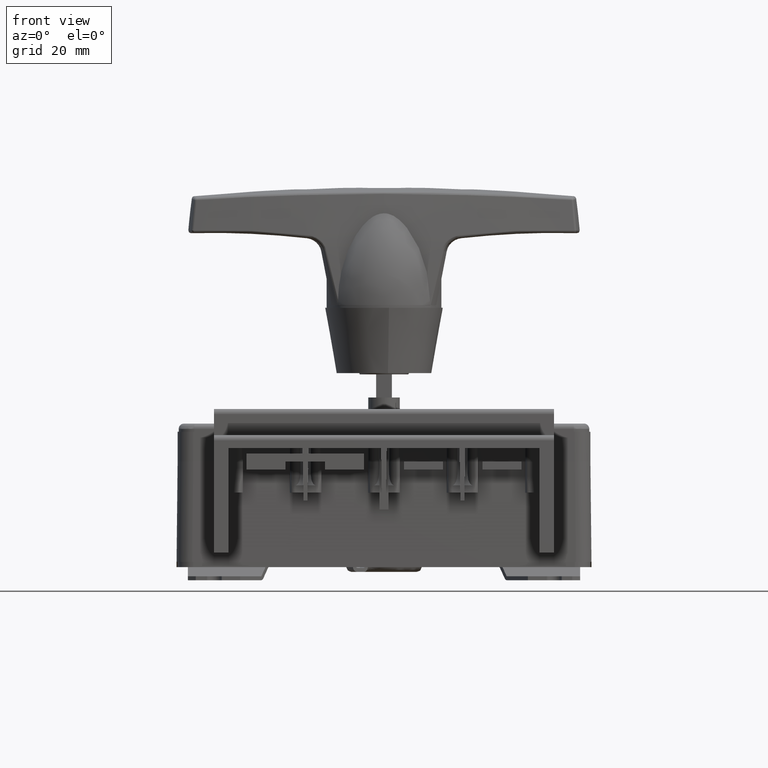
[diagram: clean part render]
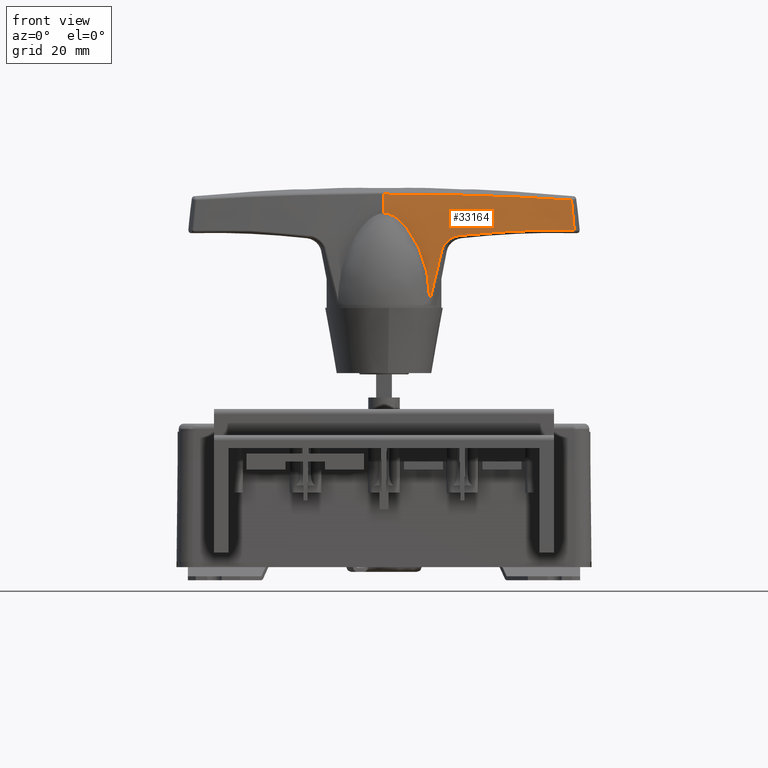
[diagram: same view with one face highlighted and labeled with its STEP entity id]
A machine part, front view. The second image highlights one B-rep face of the part: STEP entity #33164.
In plain terms, the highlighted face is a freeform B-spline surface patch.
Its self-contained STEP definition (entity closure, byte-faithful):
#196 = CARTESIAN_POINT ( 'NONE',  ( 14.41944393843570000, -13.33752662045300000, 79.27859620006819300 ) ) ;
#451 = CARTESIAN_POINT ( 'NONE',  ( 12.27575934263143000, -13.78966130670108100, 69.89632541492693500 ) ) ;
#1187 = CARTESIAN_POINT ( 'NONE',  ( 11.75489548934660500, -13.87228360459669800, 67.77185119048758100 ) ) ;
#1317 = B_SPLINE_CURVE_WITH_KNOTS ( 'NONE', 3,
 ( #12036, #35324, #32098, #42013 ),
 .UNSPECIFIED., .F., .F.,
 ( 4, 4 ),
 ( 0.0000000000000000000, 1.000000000000000000 ),
 .UNSPECIFIED. ) ;
#1847 = CARTESIAN_POINT ( 'NONE',  ( 4.510692440815994100, -12.47474075559832600, 82.98244076390612600 ) ) ;
#1979 = CARTESIAN_POINT ( 'NONE',  ( 7.275115921477890000, -14.09589949918153800, 58.50000000000000000 ) ) ;
#2138 = CARTESIAN_POINT ( 'NONE',  ( -4.240348282915114500, -11.01941652414501300, 92.85997470954609400 ) ) ;
#2352 = EDGE_LOOP ( 'NONE', ( #27936, #25308, #39068, #12340, #16681, #18527, #38831 ) ) ;
#2779 = CARTESIAN_POINT ( 'NONE',  ( 57.94501493321909900, -13.75833456142054200, 87.21105664100970500 ) ) ;
#2953 = CARTESIAN_POINT ( 'NONE',  ( 21.37823111764905100, -13.25110541548554000, 85.16724019757610600 ) ) ;
#3247 = CARTESIAN_POINT ( 'NONE',  ( 15.81444611341575200, -13.20960565004251900, 82.17402162657619200 ) ) ;
#3667 = CARTESIAN_POINT ( 'NONE',  ( 12.34752211688470100, -13.77754201632257700, 70.19346741877853900 ) ) ;
#3957 = CARTESIAN_POINT ( 'NONE',  ( 11.09995550108849100, -13.96263888091741700, 65.18101659154305600 ) ) ;
#4019 = VERTEX_POINT ( 'NONE', #36644 ) ;
#4407 = CARTESIAN_POINT ( 'NONE',  ( 11.12907893940481000, -13.95891341986140500, 65.29446524637300800 ) ) ;
#4503 = VERTEX_POINT ( 'NONE', #4716 ) ;
#4558 = CARTESIAN_POINT ( 'NONE',  ( 12.27062671178848800, -13.79052192036072800, 69.87510863833043100 ) ) ;
#4716 = CARTESIAN_POINT ( 'NONE',  ( 21.37823111764905100, -13.25110541548554000, 85.16724019757610600 ) ) ;
#4926 = CARTESIAN_POINT ( 'NONE',  ( 8.116167154348778100, -13.33568883840897500, 73.64139503623741200 ) ) ;
#5342 = CARTESIAN_POINT ( 'NONE',  ( 1.360735136817077300, -11.86605816185210600, 87.91417739141392900 ) ) ;
#5471 = CARTESIAN_POINT ( 'NONE',  ( 67.50818577971900000, -13.85481809153677800, 85.62030819358429300 ) ) ;
#5612 = CARTESIAN_POINT ( 'NONE',  ( 62.58064729434161000, -12.81392240493577900, 99.47927979780931200 ) ) ;
#5667 = CARTESIAN_POINT ( 'NONE',  ( 64.27970629598779300, -12.86532595852627900, 98.64435150843910100 ) ) ;
#5745 = CARTESIAN_POINT ( 'NONE',  ( -2.566485471225302000, -11.77242363676071200, 87.25670609724058100 ) ) ;
#6141 = CARTESIAN_POINT ( 'NONE',  ( 50.61630883178170100, -13.79565976512102000, 87.13348364996981800 ) ) ;
#6306 = CARTESIAN_POINT ( 'NONE',  ( 15.57026510336525000, -13.21985205270026000, 81.85429124515890500 ) ) ;
#6442 = CARTESIAN_POINT ( 'NONE',  ( 19.78661440675410100, -13.20323527565324000, 84.87678277494239900 ) ) ;
#6583 = CARTESIAN_POINT ( 'NONE',  ( 15.13635726089510000, -13.24507829642820100, 81.17777991913280300 ) ) ;
#6719 = CARTESIAN_POINT ( 'NONE',  ( 13.18758957326605400, -13.62153223176741300, 73.75233473310093800 ) ) ;
#7149 = CARTESIAN_POINT ( 'NONE',  ( 14.07669940523567400, -13.42610348467464800, 77.68884222011621400 ) ) ;
#7298 = CARTESIAN_POINT ( 'NONE',  ( 11.22853407124868100, -13.94601492402950200, 65.68295529015794900 ) ) ;
#7449 = CARTESIAN_POINT ( 'NONE',  ( 9.856994440711050100, -14.09784782576156000, 60.48502243093000200 ) ) ;
#8460 = CARTESIAN_POINT ( 'NONE',  ( 49.25234856689491600, -12.81608270550170800, 99.58068757589224200 ) ) ;
#8540 = CARTESIAN_POINT ( 'NONE',  ( 1.859725127441946400, -11.95677392737002100, 87.24294438170403500 ) ) ;
#8679 = CARTESIAN_POINT ( 'NONE',  ( -0.2604242407059280100, -11.58770487402654600, 89.82284458690048700 ) ) ;
#8811 = CARTESIAN_POINT ( 'NONE',  ( 5.250380265524934300, -12.63397714021392700, 81.48840182298528100 ) ) ;
#9218 = CARTESIAN_POINT ( 'NONE',  ( -2.444630412392020200, -10.33710155271790000, 101.5854696515928000 ) ) ;
#9603 = CARTESIAN_POINT ( 'NONE',  ( 35.97070078267099500, -13.64713298749870100, 86.47417694349179800 ) ) ;
#9924 = CARTESIAN_POINT ( 'NONE',  ( 14.62919921393164000, -13.29537075439160000, 80.06644105329719700 ) ) ;
#11734 = EDGE_CURVE ( 'NONE', #12365, #25529, #30854, .T. ) ;
#11916 = CARTESIAN_POINT ( 'NONE',  ( 34.21005872531782200, -12.45761027967377300, 100.2398324350729400 ) ) ;
#12009 = CARTESIAN_POINT ( 'NONE',  ( -7.493436711893019200, -10.69596421225256000, 93.61918897574979300 ) ) ;
#12036 = CARTESIAN_POINT ( 'NONE',  ( 64.27970629598779300, -12.86532595852627900, 98.64435150843910100 ) ) ;
#12061 = CARTESIAN_POINT ( 'NONE',  ( 52.26111344243822300, -12.84975817469451100, 99.41592596334112400 ) ) ;
#12134 = CARTESIAN_POINT ( 'NONE',  ( 62.40076749385930600, -14.93269383349410100, 58.50000000000000000 ) ) ;
#12247 = EDGE_CURVE ( 'NONE', #20208, #30630, #25022, .T. ) ;
#12340 = ORIENTED_EDGE ( 'NONE', *, *, #14725, .F. ) ;
#12365 = VERTEX_POINT ( 'NONE', #14682 ) ;
#12801 = CARTESIAN_POINT ( 'NONE',  ( 21.37823111764905100, -13.25110541548554000, 85.16724019757610600 ) ) ;
#13120 = CARTESIAN_POINT ( 'NONE',  ( 51.48841093987989800, 684.0404835327730100, 31.47090000250485500 ) ) ;
#13519 = CARTESIAN_POINT ( 'NONE',  ( 14.41944393843570000, -13.33752662045300000, 79.27859620006819300 ) ) ;
#13663 = CARTESIAN_POINT ( 'NONE',  ( 65.26875302407229600, -13.66734937875172000, 87.09663857756119400 ) ) ;
#14383 = CARTESIAN_POINT ( 'NONE',  ( -7.434655746359039700, -10.00359391840812000, 100.9755228237632000 ) ) ;
#14389 = CARTESIAN_POINT ( 'NONE',  ( 12.26842672481569000, -13.79089053843460300, 69.86601606205665900 ) ) ;
#14532 = CARTESIAN_POINT ( 'NONE',  ( 10.54437098464822500, -14.03341399710400800, 63.01856117539013300 ) ) ;
#14682 = CARTESIAN_POINT ( 'NONE',  ( -7.434655746359039700, -10.00359391840812000, 100.9755228237632000 ) ) ;
#14725 = EDGE_CURVE ( 'NONE', #41039, #4503, #15545, .T. ) ;
#14769 = CARTESIAN_POINT ( 'NONE',  ( -3.497340065578338200, -11.11235078432009400, 92.46292611463904600 ) ) ;
#14899 = CARTESIAN_POINT ( 'NONE',  ( -2.697764475848879700, -13.31872161127494000, 58.50000000000000000 ) ) ;
#15066 = CARTESIAN_POINT ( 'NONE',  ( -7.068448556615003900, -10.72910890980635500, 93.62352362557922400 ) ) ;
#15545 = B_SPLINE_CURVE_WITH_KNOTS ( 'NONE', 3,
 ( #19479, #22664, #2779, #6141, #29358, #29519, #9603, #19626, #32734, #12801 ),
 .UNSPECIFIED., .F., .F.,
 ( 4, 2, 2, 2, 4 ),
 ( 0.0000000000000000000, 0.2500000000000003300, 0.5000000000000005600, 0.7499999999999997800, 1.000000000000000000 ),
 .UNSPECIFIED. ) ;
#15741 = CARTESIAN_POINT ( 'NONE',  ( 67.45177398861878300, -14.51928231095693200, 72.06698283267942900 ) ) ;
#16681 = ORIENTED_EDGE ( 'NONE', *, *, #31249, .F. ) ;
#17279 = CARTESIAN_POINT ( 'NONE',  ( 11.35519338962742700, -13.92918422974778300, 66.18015249484999200 ) ) ;
#17416 = CARTESIAN_POINT ( 'NONE',  ( 11.16265821836299400, -13.95458913976162000, 65.42544627458123300 ) ) ;
#18235 = CARTESIAN_POINT ( 'NONE',  ( -2.453750511756442400, -11.25385070692445100, 91.76876693744867500 ) ) ;
#18432 = CARTESIAN_POINT ( 'NONE',  ( 40.22621639390556700, -12.63540136061710900, 100.0046414787675100 ) ) ;
#18516 = CARTESIAN_POINT ( 'NONE',  ( 2.807048802058741200, -12.13488872931102600, 85.85752296629013400 ) ) ;
#18527 = ORIENTED_EDGE ( 'NONE', *, *, #11734, .F. ) ;
#18790 = CARTESIAN_POINT ( 'NONE',  ( 22.39594213767057700, -13.34900486398593100, 87.04704750303548600 ) ) ;
#18921 = CARTESIAN_POINT ( 'NONE',  ( 52.45323757859969800, -14.04771406381610000, 86.28578165288075800 ) ) ;
#19071 = CARTESIAN_POINT ( 'NONE',  ( 62.48685877330555600, -13.91915532751362500, 85.84226577248637100 ) ) ;
#19479 = CARTESIAN_POINT ( 'NONE',  ( 65.26875302407229600, -13.66734937875172000, 87.09663857756119400 ) ) ;
#19511 = CARTESIAN_POINT ( 'NONE',  ( 16.35529708210240300, -13.19363823596904000, 82.77776387772489400 ) ) ;
#19626 = CARTESIAN_POINT ( 'NONE',  ( 28.66706967377110300, -13.48199176629830000, 85.90359754425979600 ) ) ;
#19931 = CARTESIAN_POINT ( 'NONE',  ( 14.41944393843570000, -13.33752662045300000, 79.27859620006819300 ) ) ;
#20208 = VERTEX_POINT ( 'NONE', #196 ) ;
#20348 = CARTESIAN_POINT ( 'NONE',  ( 12.30653631250681800, -13.78448348741899200, 70.02364750176101900 ) ) ;
#21209 = CARTESIAN_POINT ( 'NONE',  ( 11.10482925161012500, -13.96201689082413600, 65.19999314795711600 ) ) ;
#21726 = CARTESIAN_POINT ( 'NONE',  ( 9.837122886101996100, -13.96013481524942900, 63.85068405191351800 ) ) ;
#21769 = CARTESIAN_POINT ( 'NONE',  ( 7.144203543154277200, -11.11435243130485000, 100.8915909451926900 ) ) ;
#21849 = CARTESIAN_POINT ( 'NONE',  ( 37.29717133635440300, -15.18345527574925000, 58.50000000000000000 ) ) ;
#21869 = CARTESIAN_POINT ( 'NONE',  ( -1.478489335320141200, -11.39683185743979300, 90.97952266983900000 ) ) ;
#22064 = CARTESIAN_POINT ( 'NONE',  ( 64.27970629598779300, -12.86532595852627900, 98.64435150843910100 ) ) ;
#22142 = CARTESIAN_POINT ( 'NONE',  ( 37.52172998508130800, -12.53841982606254000, 100.8075801551130000 ) ) ;
#22274 = CARTESIAN_POINT ( 'NONE',  ( 22.31544799017499500, -14.29713077596956200, 72.78474554765317400 ) ) ;
#22418 = CARTESIAN_POINT ( 'NONE',  ( -7.429339141127080400, -9.940970593097960200, 101.6024909927928000 ) ) ;
#22664 = CARTESIAN_POINT ( 'NONE',  ( 61.60909296953450800, -13.71322327584900000, 87.18617410557979500 ) ) ;
#22978 = B_SPLINE_CURVE_WITH_KNOTS ( 'NONE', 3,
 ( #2953, #26333, #6442, #39481, #29698, #26180, #23117, #26041, #19511, #3247, #6306, #6583, #29541, #9924, #39906, #19931 ),
 .UNSPECIFIED., .F., .F.,
 ( 4, 2, 2, 2, 2, 2, 2, 4 ),
 ( 0.0000000000000000000, 0.2500000000000002800, 0.3750000000000001100, 0.5000000000000004400, 0.6249999999999997800, 0.7500000000000001100, 0.8750000000000006700, 1.000000000000000000 ),
 .UNSPECIFIED. ) ;
#23117 = CARTESIAN_POINT ( 'NONE',  ( 17.27672679393859700, -13.18139036163163900, 83.57365781298950900 ) ) ;
#23245 = CARTESIAN_POINT ( 'NONE',  ( 12.42932189039704300, -13.76352968980732100, 70.53330310997161200 ) ) ;
#23527 = CARTESIAN_POINT ( 'NONE',  ( 13.72597431923670400, -13.50813055256319300, 76.10853682028867700 ) ) ;
#23825 = CARTESIAN_POINT ( 'NONE',  ( 12.26581901738494700, -13.79132730535140000, 69.85523932774339100 ) ) ;
#23870 = EDGE_CURVE ( 'NONE', #4019, #12365, #25673, .T. ) ;
#24411 = CARTESIAN_POINT ( 'NONE',  ( 12.26696000282219300, -13.79113623574090600, 69.85995441742638000 ) ) ;
#24921 = CARTESIAN_POINT ( 'NONE',  ( 22.27197023823225300, -14.80967471435453900, 58.50000000000000000 ) ) ;
#25022 = B_SPLINE_CURVE_WITH_KNOTS ( 'NONE', 3,
 ( #13519, #7149, #23527, #6719, #40320, #26473, #23245, #3667, #20348, #29966, #451, #4558, #14389, #24411, #23825, #30551, #34343, #1187, #37412, #37260, #17279, #7298, #17416, #4407, #27761, #21209, #3957, #37705, #14532, #30838, #7449 ),
 .UNSPECIFIED., .F., .F.,
 ( 4, 2, 1, 1, 1, 1, 1, 1, 1, 1, 2, 2, 2, 2, 1, 1, 1, 1, 1, 2, 2, 4 ),
 ( 0.0000000000000000000, 0.2499999999996414000, 0.3749999999994610400, 0.4374999999993718900, 0.4687499999993262600, 0.4843749999993044500, 0.4921874999992945600, 0.4960937499992896200, 0.4980468749992870700, 0.4990234374992847900, 0.4995117187492847400, 0.4999999999992846800, 0.6249999999994415600, 0.6874999999995199400, 0.7187499999995592400, 0.7343749999995781200, 0.7421874999995882200, 0.7460937499995925500, 0.7480468749995941000, 0.7490234374995948800, 0.7499999999995955500, 1.000000000000000000 ),
 .UNSPECIFIED. ) ;
#25080 = CARTESIAN_POINT ( 'NONE',  ( 6.564625063503029000, -12.93425280351670300, 78.41592289539976000 ) ) ;
#25203 = CARTESIAN_POINT ( 'NONE',  ( -1.165756156757062200, -11.44482856200674600, 90.69719198692149600 ) ) ;
#25308 = ORIENTED_EDGE ( 'NONE', *, *, #12247, .F. ) ;
#25349 = CARTESIAN_POINT ( 'NONE',  ( -4.624476479169797600, -10.97385815199268700, 93.03485809538374000 ) ) ;
#25529 = VERTEX_POINT ( 'NONE', #5667 ) ;
#25567 = AXIS2_PLACEMENT_3D ( 'NONE', #13120, #26485, #36412 ) ;
#25673 = CIRCLE ( 'NONE', #25567, 700.0000000000682100 ) ;
#25757 = CARTESIAN_POINT ( 'NONE',  ( 52.55540627591020100, -12.84562839996246100, 100.1401874519992000 ) ) ;
#26041 = CARTESIAN_POINT ( 'NONE',  ( 16.65261465530810300, -13.18797228699535900, 83.06134226231880300 ) ) ;
#26180 = CARTESIAN_POINT ( 'NONE',  ( 17.60600273387954900, -13.18038706047361900, 83.80538672301788900 ) ) ;
#26333 = CARTESIAN_POINT ( 'NONE',  ( 20.56632895286830000, -13.22284503813457900, 85.07978873885831200 ) ) ;
#26473 = CARTESIAN_POINT ( 'NONE',  ( 12.59223504558995500, -13.73498685866087900, 71.21375767503548100 ) ) ;
#26485 = DIRECTION ( 'NONE',  ( -0.9964155163343535500, 0.08459384616001135200, 1.493765377686499300E-017 ) ) ;
#27547 = EDGE_CURVE ( 'NONE', #4503, #20208, #22978, .T. ) ;
#27761 = CARTESIAN_POINT ( 'NONE',  ( 11.11212834742904200, -13.96108452875451000, 65.22841824070457100 ) ) ;
#27936 = ORIENTED_EDGE ( 'NONE', *, *, #30237, .F. ) ;
#28047 = CARTESIAN_POINT ( 'NONE',  ( -1.722384761678829500, -10.45752214220712200, 100.9550977682044500 ) ) ;
#28146 = CARTESIAN_POINT ( 'NONE',  ( -5.410030764830490400, -10.88674140749964400, 93.32153453467047700 ) ) ;
#28285 = CARTESIAN_POINT ( 'NONE',  ( -2.122072977017005300, -11.30141184871529900, 91.51486524214530500 ) ) ;
#28425 = CARTESIAN_POINT ( 'NONE',  ( 8.520415438525551700, -13.45491246773897000, 72.03127076580393900 ) ) ;
#28562 = CARTESIAN_POINT ( 'NONE',  ( -3.141404611275506300, -11.15932117637236800, 92.24276887739419800 ) ) ;
#28693 = CARTESIAN_POINT ( 'NONE',  ( 62.42688167636252000, -14.62561463550730100, 72.17859244613653400 ) ) ;
#29251 = CARTESIAN_POINT ( 'NONE',  ( 22.51337718263799900, -11.96618625655642100, 101.2735303811366000 ) ) ;
#29358 = CARTESIAN_POINT ( 'NONE',  ( 46.95204530965640500, -13.78401519179312000, 87.03092877290210100 ) ) ;
#29519 = CARTESIAN_POINT ( 'NONE',  ( 39.62862952006059900, -13.70897236184455900, 86.70131596400091200 ) ) ;
#29541 = CARTESIAN_POINT ( 'NONE',  ( 14.94622742754494000, -13.26009117682419900, 80.82022304067280100 ) ) ;
#29698 = CARTESIAN_POINT ( 'NONE',  ( 18.29804799558150200, -13.18280788925143900, 84.22132458107640200 ) ) ;
#29966 = CARTESIAN_POINT ( 'NONE',  ( 12.28602191617212800, -13.78793805994295800, 69.93876202922459100 ) ) ;
#30237 = EDGE_CURVE ( 'NONE', #30630, #4019, #42580, .T. ) ;
#30551 = CARTESIAN_POINT ( 'NONE',  ( 12.18208004559054600, -13.80534809000385000, 69.50920280377062000 ) ) ;
#30630 = VERTEX_POINT ( 'NONE', #38179 ) ;
#30838 = CARTESIAN_POINT ( 'NONE',  ( 10.12325770693285800, -14.07364003553087000, 61.46145915779273100 ) ) ;
#30854 = B_SPLINE_CURVE_WITH_KNOTS ( 'NONE', 3,
 ( #14383, #41055, #28047, #38421, #21769, #38266, #38133, #34776, #11916, #18432, #42036, #8460, #12061, #41615, #41769, #22064 ),
 .UNSPECIFIED., .F., .F.,
 ( 4, 2, 2, 2, 2, 2, 2, 4 ),
 ( 0.0000000000000000000, 0.1197407438492926300, 0.2454920661565363200, 0.4969947107710238600, 0.6227460330782681500, 0.7484973553855125400, 0.8742486776927568300, 1.000000000000000000 ),
 .UNSPECIFIED. ) ;
#31249 = EDGE_CURVE ( 'NONE', #25529, #41039, #1317, .T. ) ;
#31486 = CARTESIAN_POINT ( 'NONE',  ( -7.683120679607119600, -12.93021714210102100, 58.50000000000000000 ) ) ;
#31650 = CARTESIAN_POINT ( 'NONE',  ( -5.813149162091964900, -10.84496745612473800, 93.43428325675016300 ) ) ;
#31927 = CARTESIAN_POINT ( 'NONE',  ( -6.644357394516961600, -10.76593013389878800, 93.58598066004087500 ) ) ;
#32066 = CARTESIAN_POINT ( 'NONE',  ( 7.139776206699290900, -13.07570708903722300, 76.83068018648616300 ) ) ;
#32098 = CARTESIAN_POINT ( 'NONE',  ( 65.00681975784999600, -13.43243860567186100, 90.95329717711079800 ) ) ;
#32193 = CARTESIAN_POINT ( 'NONE',  ( 67.42871535318938900, -14.79088578059736000, 58.50000000000000000 ) ) ;
#32622 = CARTESIAN_POINT ( 'NONE',  ( 7.405579718160511000, -12.55906449313162400, 87.23381776485553000 ) ) ;
#32734 = CARTESIAN_POINT ( 'NONE',  ( 25.02048592543040000, -13.37788361705656100, 85.55955406981399800 ) ) ;
#33164 = ADVANCED_FACE ( 'NONE', ( #40478 ), #42137, .F. ) ;
#34343 = CARTESIAN_POINT ( 'NONE',  ( 12.04520053275836700, -13.82801537167738800, 68.94533926732854900 ) ) ;
#34719 = CARTESIAN_POINT ( 'NONE',  ( 3.252221228407682100, -12.22171805692300400, 85.14761306347024600 ) ) ;
#34776 = CARTESIAN_POINT ( 'NONE',  ( 31.20206152768191600, -12.35269131624069200, 100.3448348679683300 ) ) ;
#34867 = CARTESIAN_POINT ( 'NONE',  ( 9.856994440711050100, -14.09784782576156000, 60.48502243093000200 ) ) ;
#35282 = CARTESIAN_POINT ( 'NONE',  ( 37.33586260581851900, -14.72750463985593200, 72.62716417242033600 ) ) ;
#35324 = CARTESIAN_POINT ( 'NONE',  ( 64.67695744542979200, -13.16533799515790000, 94.80368315869380100 ) ) ;
#35416 = CARTESIAN_POINT ( 'NONE',  ( -7.551441169364449200, -11.37918815896527200, 87.26814779169168900 ) ) ;
#35558 = CARTESIAN_POINT ( 'NONE',  ( 37.41073836496143900, -13.84555670163102200, 86.73400253747956900 ) ) ;
#36412 = DIRECTION ( 'NONE',  ( -0.08459384616001136600, -0.9964155163343535500, 0.0000000000000000000 ) ) ;
#36644 = CARTESIAN_POINT ( 'NONE',  ( -7.493436711893019200, -10.69596421225256000, 93.61918897574979300 ) ) ;
#37260 = CARTESIAN_POINT ( 'NONE',  ( 11.45515714088887400, -13.91537101948850400, 66.57574260734865800 ) ) ;
#37412 = CARTESIAN_POINT ( 'NONE',  ( 11.64392263693096700, -13.88872817984866800, 67.32608202137421900 ) ) ;
#37705 = CARTESIAN_POINT ( 'NONE',  ( 11.09722138575140900, -13.96298745889788300, 65.17037310315377900 ) ) ;
#38133 = CARTESIAN_POINT ( 'NONE',  ( 22.17837829502962100, -11.98984004368793100, 100.6236045095579400 ) ) ;
#38179 = CARTESIAN_POINT ( 'NONE',  ( 9.856994440711050100, -14.09784782576156000, 60.48502243093000200 ) ) ;
#38266 = CARTESIAN_POINT ( 'NONE',  ( 16.16285762300751100, -11.68760931109125100, 100.7634719249127100 ) ) ;
#38365 = CARTESIAN_POINT ( 'NONE',  ( 0.3004912759814584200, -11.68152373741723700, 89.20398564988435900 ) ) ;
#38421 = CARTESIAN_POINT ( 'NONE',  ( 4.138962852679954500, -10.90048486899262900, 100.9189268503475000 ) ) ;
#38831 = ORIENTED_EDGE ( 'NONE', *, *, #23870, .F. ) ;
#38911 = CARTESIAN_POINT ( 'NONE',  ( 7.526954753319899700, -11.12953573806064100, 101.5514195670950000 ) ) ;
#39060 = CARTESIAN_POINT ( 'NONE',  ( 67.59790304550949700, -12.79805474792866000, 99.14852039532920000 ) ) ;
#39068 = ORIENTED_EDGE ( 'NONE', *, *, #27547, .F. ) ;
#39481 = CARTESIAN_POINT ( 'NONE',  ( 18.66401078630449800, -13.18629107895193900, 84.40670263444859200 ) ) ;
#39906 = CARTESIAN_POINT ( 'NONE',  ( 14.50564783747669900, -13.31524859671112000, 79.67843624166690100 ) ) ;
#40320 = CARTESIAN_POINT ( 'NONE',  ( 12.91532347401412800, -13.67582336053322400, 72.57779755103992200 ) ) ;
#40478 = FACE_OUTER_BOUND ( 'NONE', #2352, .T. ) ;
#41039 = VERTEX_POINT ( 'NONE', #13663 ) ;
#41055 = CARTESIAN_POINT ( 'NONE',  ( -4.579251031791304900, -10.23052274863548700, 100.9653269430118000 ) ) ;
#41565 = CARTESIAN_POINT ( 'NONE',  ( 9.497232407228455700, -13.78216803713881300, 67.15737781614085100 ) ) ;
#41615 = CARTESIAN_POINT ( 'NONE',  ( 58.27375025922062700, -12.87736849301381000, 99.04903586189593100 ) ) ;
#41701 = CARTESIAN_POINT ( 'NONE',  ( 52.35416201512570200, -15.21604791770900000, 58.50000000000000000 ) ) ;
#41769 = CARTESIAN_POINT ( 'NONE',  ( 61.27762992325413200, -12.87368039754747600, 98.84924343896783200 ) ) ;
#42013 = CARTESIAN_POINT ( 'NONE',  ( 65.26875302407229600, -13.66734937875172000, 87.09663857756119400 ) ) ;
#42036 = CARTESIAN_POINT ( 'NONE',  ( 43.23490735538366200, -12.70838527759427100, 99.87455444267712300 ) ) ;
#42109 = CARTESIAN_POINT ( 'NONE',  ( 7.321606840103884300, -13.54816573920342100, 72.87879707876540200 ) ) ;
#42137 =( BOUNDED_SURFACE ( )  B_SPLINE_SURFACE ( 3, 3, ( 
 ( #31486, #14899, #1979, #24921, #21849, #41701, #12134, #32193 ),
 ( #42254, #42531, #42109, #22274, #35282, #42380, #28693, #15741 ),
 ( #35416, #5745, #32622, #18790, #35558, #18921, #19071, #5471 ),
 ( #22418, #9218, #38911, #29251, #22142, #25757, #5612, #39060 ) ),
 .UNSPECIFIED., .F., .F., .F. ) 
 B_SPLINE_SURFACE_WITH_KNOTS ( ( 4, 4 ),
 ( 4, 1, 1, 1, 1, 4 ),
 ( 0.0000000000000000000, 1.000000000000000000 ),
 ( 0.0000000000000000000, 0.1996430393695785000, 0.3993728978263725300, 0.5992786622339970600, 0.7994540547378520300, 1.000000000000000000 ),
 .UNSPECIFIED. ) 
 GEOMETRIC_REPRESENTATION_ITEM ( )  RATIONAL_B_SPLINE_SURFACE ( (
 ( 1.000000000000000000, 1.000000000000000000, 1.000000000000000000, 1.000000000000000000, 1.000000000000000000, 1.000000000000000000, 1.000000000000000000, 1.000000000000000000),
 ( 0.9996824371664420100, 0.9996824371664420100, 0.9996833743905959600, 0.9996872117530770700, 0.9996949263270429300, 0.9997019747763030700, 0.9997182564160389500, 0.9997182564160389500),
 ( 0.9996824371664420100, 0.9996824371664420100, 0.9996833743905959600, 0.9996872117530770700, 0.9996949263270429300, 0.9997019747763030700, 0.9997182564160389500, 0.9997182564160389500),
 ( 1.000000000000000000, 1.000000000000000000, 1.000000000000000000, 1.000000000000000000, 1.000000000000000000, 1.000000000000000000, 1.000000000000000000, 1.000000000000000000) ) ) 
 REPRESENTATION_ITEM ( '' )  SURFACE ( )  );
#42254 = CARTESIAN_POINT ( 'NONE',  ( -7.636061887919622000, -12.37592020035097000, 72.89608676166922400 ) ) ;
#42380 = CARTESIAN_POINT ( 'NONE',  ( 52.38613628356633000, -14.83808800438530200, 72.40161089956234300 ) ) ;
#42531 = CARTESIAN_POINT ( 'NONE',  ( -2.650890274043711700, -12.76661244598358100, 72.89032436393247800 ) ) ;
#42580 = B_SPLINE_CURVE_WITH_KNOTS ( 'NONE', 3,
 ( #34867, #21726, #41565, #28425, #4926, #32066, #25080, #8811, #1847, #34719, #18516, #8540, #5342, #38365, #8679, #25203, #21869, #28285, #18235, #28562, #14769, #2138, #25349, #28146, #31650, #31927, #15066, #12009 ),
 .UNSPECIFIED., .F., .F.,
 ( 4, 2, 2, 2, 2, 2, 2, 2, 2, 2, 2, 2, 2, 4 ),
 ( 1.398578778534940200E-017, 0.009960402747478756100, 0.01494060412121814600, 0.01992080549495754000, 0.02490100686869693400, 0.02739110755556662900, 0.02988120824243632000, 0.03237130892930601600, 0.03361635927274086300, 0.03486140961617571100, 0.03610645995961055800, 0.03735151030304540600, 0.03859656064648025300, 0.03984161098991510100 ),
 .UNSPECIFIED. ) ;